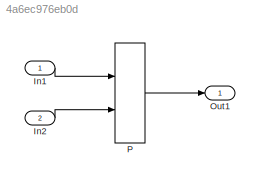
MODEL slx_4a6ec976eb0d
KIND model
CONFIG AbsTol = auto
CONFIG EnableMultiTasking = off
CONFIG FixedStep = auto
CONFIG MaxStep = auto
CONFIG MinStep = auto
CONFIG RelTol = 1e-3
CONFIG SampleTimeConstraint = Unconstrained
CONFIG Solver = FixedStepDiscrete
CONFIG SolverName = FixedStepDiscrete
CONFIG StartTime = 0.0
CONFIG StopTime = 10.0
BLOCK [Inport] In1
  IconDisplay = Port number
  OutMax = 2
BLOCK [Inport] In2
  IconDisplay = Port number
  OutMax = 5
  OutMin = 0
  Port = 2
BLOCK [Outport] Out1
  IconDisplay = Port number
BLOCK [Interpolation_n-D] P
  ExtrapMethod = Clip
  InputPortMap = u0,u1
  IntermediateResultsDataTypeStr = uint8
  InternalRulePriority = Speed
  NumSelectionDims = 2
  OutDataTypeStr = uint16
  Ports = [2, 1]
  RndMeth = Zero
  SaturateOnIntegerOverflow = on
  Table = [76.4981943683596 68.8763217111197 20.5550810743587 109.494875190545 24.7857151943068;120.734953298885 122.81279541166 0.0518364550258031 40.583675926348 126.918943036726]
  ValidIndexMayReachLast = on
LINE In1:1 -> P:1
LINE In2:1 -> P:2
LINE P:1 -> Out1:1
